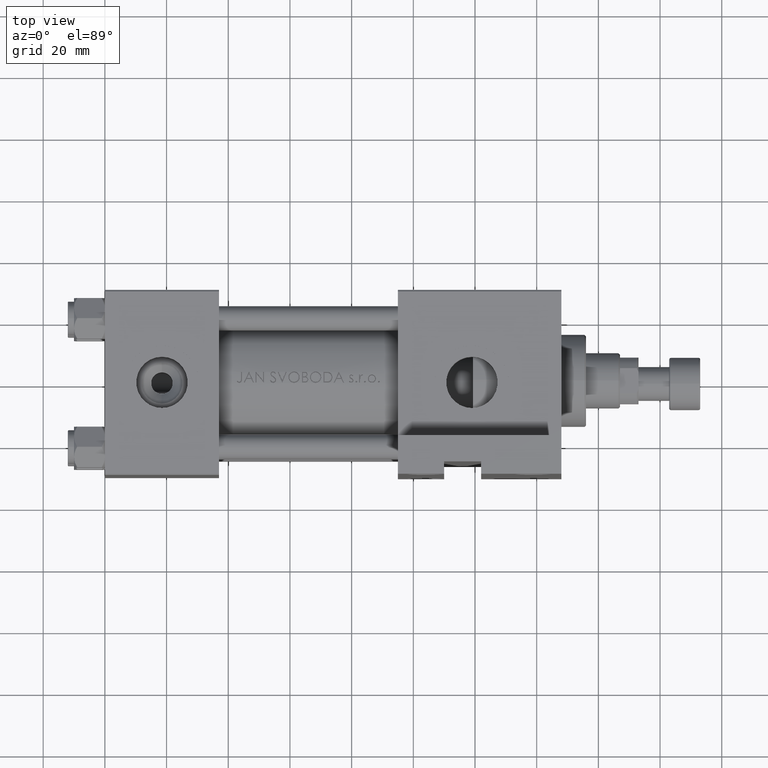
[diagram: clean part render]
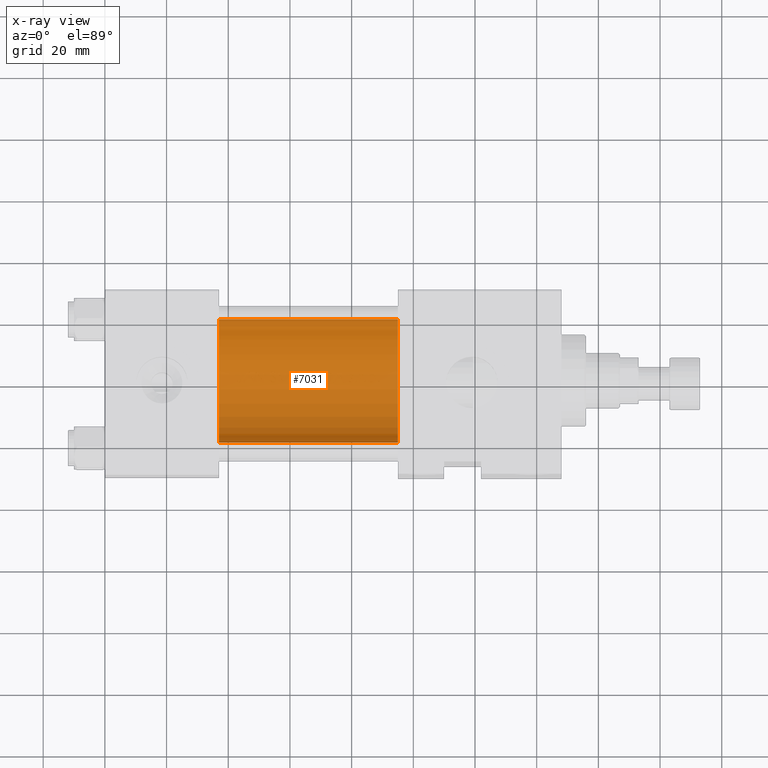
[diagram: x-ray — body ghosted, one internal face saturated and labeled with its STEP entity id]
A machine part, top view, then the same camera in x-ray: the body is ghosted and one INTERNAL B-rep face — a face not visible from any outside direction — is saturated and labeled: STEP entity #7031.
In plain terms, the highlighted cylindrical surface (partial cylindrical patch) has radius 20 mm, axis along (-1, -0, 0).
Its self-contained STEP definition (entity closure, byte-faithful):
#432 = FACE_OUTER_BOUND ( 'NONE', #34014, .T. ) ;
#2681 = CIRCLE ( 'NONE', #28863, 20.00000000000000000 ) ;
#4664 = CYLINDRICAL_SURFACE ( 'NONE', #22491, 20.00000000000000000 ) ;
#7031 = ADVANCED_FACE ( 'NONE', ( #432 ), #4664, .F. ) ;
#10000 = AXIS2_PLACEMENT_3D ( 'NONE', #12885, #16397, #16646 ) ;
#10447 = VERTEX_POINT ( 'NONE', #34782 ) ;
#11327 = CARTESIAN_POINT ( 'NONE',  ( 95.00000000000000000, -1.224646799147354686E-16, 1.000000000000000888 ) ) ;
#12709 = CARTESIAN_POINT ( 'NONE',  ( 95.00000000000000000, -1.224646799147354686E-16, 21.00000000000000000 ) ) ;
#12885 = CARTESIAN_POINT ( 'NONE',  ( 37.00000000000000000, -1.224646799147354686E-16, 1.000000000000000888 ) ) ;
#14577 = DIRECTION ( 'NONE',  ( 1.000000000000000000, 0.000000000000000000, 0.000000000000000000 ) ) ;
#16397 = DIRECTION ( 'NONE',  ( 1.000000000000000000, 0.000000000000000000, 0.000000000000000000 ) ) ;
#16646 = DIRECTION ( 'NONE',  ( 0.000000000000000000, 0.000000000000000000, -1.000000000000000000 ) ) ;
#17560 = ORIENTED_EDGE ( 'NONE', *, *, #37838, .F. ) ;
#19778 = VERTEX_POINT ( 'NONE', #48893 ) ;
#22491 = AXIS2_PLACEMENT_3D ( 'NONE', #42155, #38434, #27276 ) ;
#22648 = VECTOR ( 'NONE', #27863, 1000.000000000000000 ) ;
#23328 = DIRECTION ( 'NONE',  ( -1.000000000000000000, -0.000000000000000000, -0.000000000000000000 ) ) ;
#23849 = VERTEX_POINT ( 'NONE', #36940 ) ;
#25089 = VECTOR ( 'NONE', #23328, 1000.000000000000000 ) ;
#25603 = VERTEX_POINT ( 'NONE', #38293 ) ;
#25933 = ORIENTED_EDGE ( 'NONE', *, *, #32365, .T. ) ;
#27276 = DIRECTION ( 'NONE',  ( 0.000000000000000000, 0.000000000000000000, 1.000000000000000000 ) ) ;
#27863 = DIRECTION ( 'NONE',  ( -1.000000000000000000, -0.000000000000000000, -0.000000000000000000 ) ) ;
#28863 = AXIS2_PLACEMENT_3D ( 'NONE', #11327, #14577, #41862 ) ;
#30496 = CARTESIAN_POINT ( 'NONE',  ( 95.00000000000000000, 2.326828918379970576E-15, -19.00000000000000000 ) ) ;
#32365 = EDGE_CURVE ( 'NONE', #10447, #23849, #2681, .T. ) ;
#34014 = EDGE_LOOP ( 'NONE', ( #37550, #25933, #44460, #17560 ) ) ;
#34782 = CARTESIAN_POINT ( 'NONE',  ( 95.00000000000000000, 2.326828918379970576E-15, -19.00000000000000000 ) ) ;
#35728 = EDGE_CURVE ( 'NONE', #23849, #25603, #46737, .T. ) ;
#36940 = CARTESIAN_POINT ( 'NONE',  ( 95.00000000000000000, -1.224646799147354686E-16, 21.00000000000000000 ) ) ;
#37550 = ORIENTED_EDGE ( 'NONE', *, *, #38066, .F. ) ;
#37838 = EDGE_CURVE ( 'NONE', #19778, #25603, #44909, .T. ) ;
#38066 = EDGE_CURVE ( 'NONE', #10447, #19778, #46390, .T. ) ;
#38293 = CARTESIAN_POINT ( 'NONE',  ( 37.00000000000000000, -1.224646799147354686E-16, 21.00000000000000000 ) ) ;
#38434 = DIRECTION ( 'NONE',  ( -1.000000000000000000, -0.000000000000000000, -0.000000000000000000 ) ) ;
#41862 = DIRECTION ( 'NONE',  ( 0.000000000000000000, 0.000000000000000000, -1.000000000000000000 ) ) ;
#42155 = CARTESIAN_POINT ( 'NONE',  ( 95.00000000000000000, -1.224646799147354686E-16, 1.000000000000000888 ) ) ;
#44460 = ORIENTED_EDGE ( 'NONE', *, *, #35728, .T. ) ;
#44909 = CIRCLE ( 'NONE', #10000, 20.00000000000000000 ) ;
#46390 = LINE ( 'NONE', #30496, #25089 ) ;
#46737 = LINE ( 'NONE', #12709, #22648 ) ;
#48893 = CARTESIAN_POINT ( 'NONE',  ( 37.00000000000000000, 2.326828918379970576E-15, -19.00000000000000000 ) ) ;